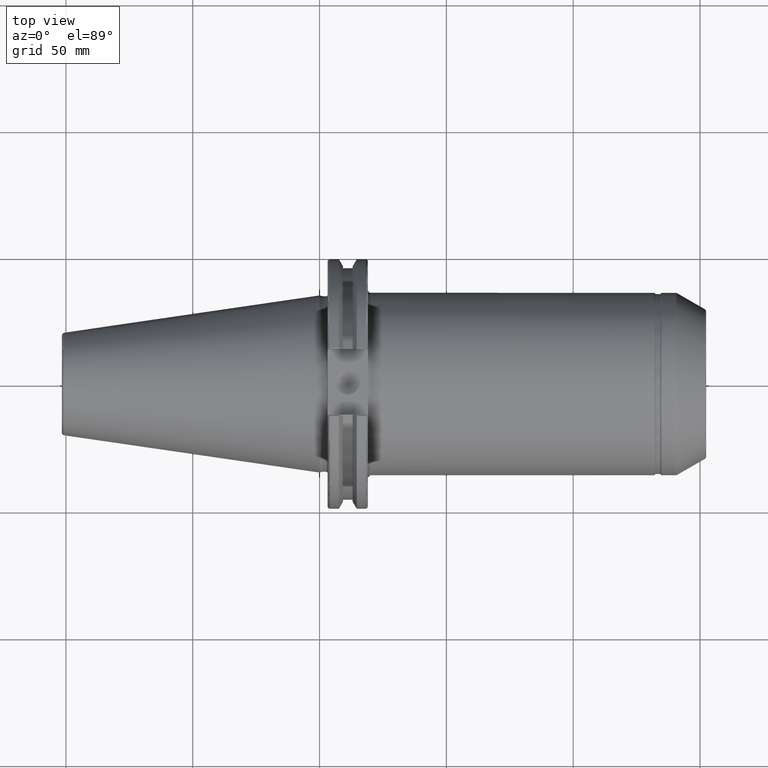
[diagram: clean part render]
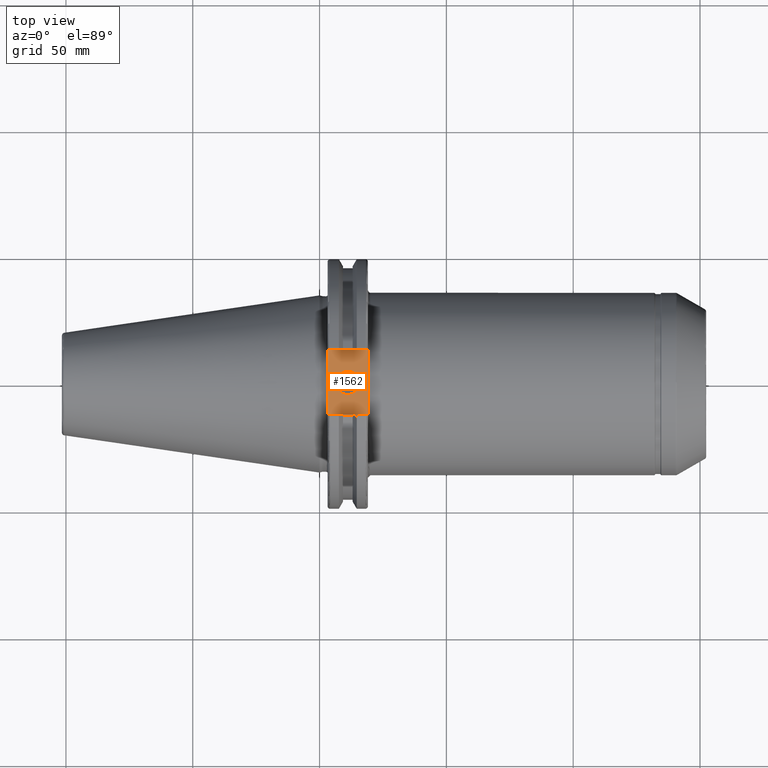
[diagram: same view with one face highlighted and labeled with its STEP entity id]
A machine part, top view. The second image highlights one B-rep face of the part: STEP entity #1562.
In plain terms, the highlighted planar face has unit normal (0, 0, 1).
Its self-contained STEP definition (entity closure, byte-faithful):
#66=FACE_BOUND('',#332,.T.);
#93=PLANE('',#1778);
#227=FACE_OUTER_BOUND('',#331,.T.);
#331=EDGE_LOOP('',(#1406,#1407,#1408,#1409));
#332=EDGE_LOOP('',(#1410));
#362=LINE('',#2450,#445);
#383=LINE('',#2661,#466);
#394=LINE('',#2734,#477);
#396=LINE('',#2776,#479);
#445=VECTOR('',#1956,10.);
#466=VECTOR('',#2097,10.);
#477=VECTOR('',#2120,10.);
#479=VECTOR('',#2130,10.);
#590=CIRCLE('',#1769,4.7625);
#645=VERTEX_POINT('',#2447);
#646=VERTEX_POINT('',#2449);
#689=VERTEX_POINT('',#2658);
#690=VERTEX_POINT('',#2660);
#751=VERTEX_POINT('',#2964);
#820=EDGE_CURVE('',#645,#646,#362,.T.);
#883=EDGE_CURVE('',#689,#690,#383,.T.);
#904=EDGE_CURVE('',#645,#690,#394,.T.);
#912=EDGE_CURVE('',#689,#646,#396,.T.);
#972=EDGE_CURVE('',#751,#751,#590,.T.);
#1406=ORIENTED_EDGE('',*,*,#820,.F.);
#1407=ORIENTED_EDGE('',*,*,#904,.T.);
#1408=ORIENTED_EDGE('',*,*,#883,.F.);
#1409=ORIENTED_EDGE('',*,*,#912,.T.);
#1410=ORIENTED_EDGE('',*,*,#972,.T.);
#1562=ADVANCED_FACE('',(#227,#66),#93,.T.);
#1769=AXIS2_PLACEMENT_3D('',#2965,#2223,#2224);
#1778=AXIS2_PLACEMENT_3D('',#2975,#2242,#2243);
#1956=DIRECTION('',(0.,-1.,0.));
#2097=DIRECTION('',(0.,1.,0.));
#2120=DIRECTION('',(-1.,0.,0.));
#2130=DIRECTION('',(1.,-1.31581988103722E-16,0.));
#2223=DIRECTION('center_axis',(0.,0.,-1.));
#2224=DIRECTION('ref_axis',(1.,0.,0.));
#2242=DIRECTION('center_axis',(0.,0.,1.));
#2243=DIRECTION('ref_axis',(1.,0.,0.));
#2447=CARTESIAN_POINT('',(19.05,12.95,37.719));
#2449=CARTESIAN_POINT('',(19.05,-12.95,37.719));
#2450=CARTESIAN_POINT('',(19.05,0.,37.719));
#2658=CARTESIAN_POINT('',(3.175,-12.95,37.719));
#2660=CARTESIAN_POINT('',(3.175,12.95,37.719));
#2661=CARTESIAN_POINT('',(3.175,24.60625,37.719));
#2734=CARTESIAN_POINT('',(20.05,12.95,37.719));
#2776=CARTESIAN_POINT('',(3.175,-12.95,37.719));
#2964=CARTESIAN_POINT('',(6.3716,-5.83238038093927E-16,37.719));
#2965=CARTESIAN_POINT('Origin',(11.1341,0.,37.719));
#2975=CARTESIAN_POINT('Origin',(18.0875,0.,37.719));